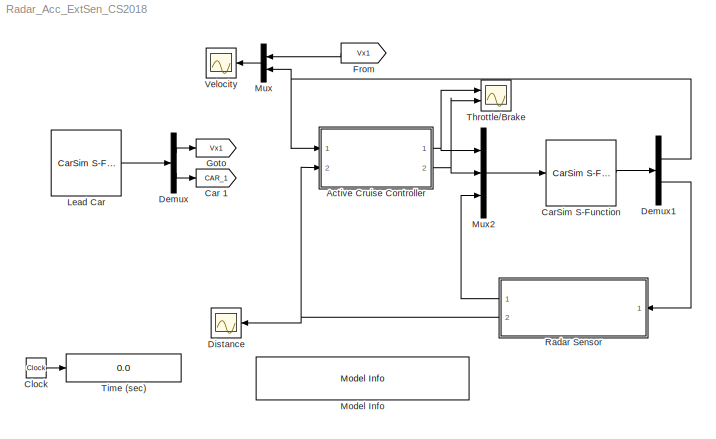
MODEL Radar_Acc_ExtSen_CS2018
KIND model
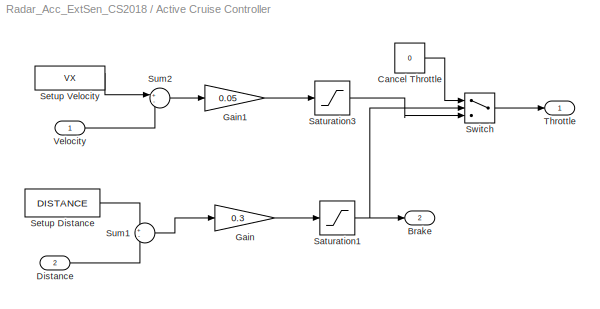
BLOCK [SubSystem] Active Cruise Controller
  FunctionWithSeparateData = off
  MaskCallbackString = |
  MaskEnableString = on,on
  MaskHideContents = off
  MaskIconFrame = on
  MaskIconOpaque = on
  MaskIconRotate = none
  MaskIconUnits = autoscale
  MaskPortRotate = default
  MaskPromptString = Setup Velocity (km/h)|Setup Distance (m)
  MaskStyleString = edit,edit
  MaskToolTipString = on,on
  MaskTunableValueString = on,on
  MaskValueString = 95|50
  MaskVariables = VX=@1;DISTANCE=@2;
  MaskVisibilityString = on,on
  MinAlgLoopOccurrences = off
  Opaque = off
  Ports = [2, 2]
  PropExecContextOutsideSubsystem = off
  RTWSystemCode = Auto
  RequestExecContextInheritance = off
  SID = 1
BLOCK [Outport] Active Cruise Controller/Brake
  IconDisplay = Port number
  Port = 2
  SID = 15
BLOCK [Constant] Active Cruise Controller/Cancel Throttle
  SID = 4
  Value = 0
BLOCK [Inport] Active Cruise Controller/Distance
  IconDisplay = Port number
  Port = 2
  SID = 3
BLOCK [Gain] Active Cruise Controller/Gain
  Gain = 0.3
  SID = 5
BLOCK [Gain] Active Cruise Controller/Gain1
  Gain = 0.05
  SID = 6
BLOCK [Saturate] Active Cruise Controller/Saturation1
  InputPortMap = u0
  LowerLimit = 0
  Ports = [1, 1]
  SID = 7
  UpperLimit = 15
BLOCK [Saturate] Active Cruise Controller/Saturation3
  InputPortMap = u0
  LowerLimit = 0
  Ports = [1, 1]
  SID = 8
  UpperLimit = 1
BLOCK [Constant] Active Cruise Controller/Setup Distance
  SID = 9
  Value = DISTANCE
BLOCK [Constant] Active Cruise Controller/Setup Velocity
  SID = 10
  Value = VX
BLOCK [Sum] Active Cruise Controller/Sum1
  IconShape = round
  Inputs = +-
  Ports = [2, 1]
  SID = 11
BLOCK [Sum] Active Cruise Controller/Sum2
  IconShape = round
  Inputs = +-
  Ports = [2, 1]
  SID = 12
BLOCK [Switch] Active Cruise Controller/Switch
  Criteria = u2 > Threshold
  InputSameDT = off
  SID = 13
BLOCK [Outport] Active Cruise Controller/Throttle
  IconDisplay = Port number
  SID = 14
BLOCK [Inport] Active Cruise Controller/Velocity
  IconDisplay = Port number
  SID = 2
BLOCK [Goto] Car 1
  GotoTag = CAR_1
  SID = 16
  TagVisibility = global
BLOCK [Reference] CarSim S-Function  REF=Solver_SF/CarSim S-Function
  Ports = [1, 1]
  Priority = 1
  SID = 21
  SIMFILE = Radar_Acc_ExtSen_Car_2.sim
  SourceBlock = Solver_SF/CarSim S-Function
  SourceType = Vehicle math model library
BLOCK [Clock] Clock
  Decimation = 10
  SID = 17
BLOCK [Demux] Demux
  Outputs = [1 3]
  Ports = [1, 2]
  SID = 18
BLOCK [Demux] Demux1
  Outputs = [1 3]
  Ports = [1, 2]
  SID = 19
BLOCK [Scope] Distance
  DataFormat = Array
  Floating = off
  LimitDataPoints = off
  NumInputPorts = 1
  Ports = [1]
  SID = 20
  SaveName = ScopeData1
  TickLabels = on
  TimeRange = 50
  YMax = 80
  YMin = 5
BLOCK [From] From
  CloseFcn = tagdialog Close
  GotoTag = Vx1
  SID = 22
BLOCK [Goto] Goto
  GotoTag = Vx1
  SID = 23
  TagVisibility = local
BLOCK [Reference] Lead Car  REF=Solver_SF/CarSim S-Function
  Ports = [0, 1]
  Priority = 1
  SID = 24
  SIMFILE = Radar_Acc_ExtSen_Car_1.sim
  SourceBlock = Solver_SF/CarSim S-Function
  SourceType = Vehicle math model library
BLOCK [Reference] Model Info  REF=simulink/Model-Wide\nUtilities/Model Info
  BlockCM = none
  DisplayStringWithTags = Multi Vehicle Run\nAdaptive Cruise Control Model
  Frame = on
  FunctionWithSeparateData = off
  GeneratePreprocessorConditionals = off
  HorizontalTextAlignment = Center
  InitialBlockCM = none
  LeftAlignmentValue = 0.5
  MaskDisplayString = Multi Vehicle Run\\nAdaptive Cruise Control Model
  Ports = []
  RTWMemSecDataConstants = Inherit from model
  RTWMemSecDataInternal = Inherit from model
  RTWMemSecDataParameters = Inherit from model
  RTWMemSecFuncExecute = Inherit from model
  RTWMemSecFuncInitTerm = Inherit from model
  SID = 26
  ShowPortLabels = FromPortIcon
  SourceBlock = simulink/Model-Wide\nUtilities/Model Info
  SourceBlockDiagram = Radar_Acc_ExtSen_CS2018
  SourceType = CMBlock
  SystemSampleTime = -1
  TagMaxNumber = 20
BLOCK [Mux] Mux
  DisplayOption = bar
  Inputs = 2
  Ports = [2, 1]
  SID = 27
BLOCK [Mux] Mux2
  Inputs = 3
  Ports = [3, 1]
  SID = 28
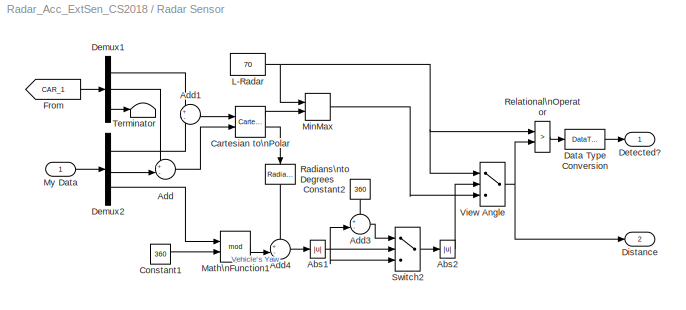
BLOCK [SubSystem] Radar Sensor
  FunctionWithSeparateData = off
  MaskCallbackString = |
  MaskDescription = An example of a radar sensor. It can detect the distance between the sensor and another object according its position (Xo, Yo).\n\nInput parameters are View Angle(deg) and radar detectable distance(m).
  MaskEnableString = on,on
  MaskHideContents = off
  MaskIconFrame = on
  MaskIconOpaque = on
  MaskIconRotate = none
  MaskIconUnits = autoscale
  MaskInitialization = d_ang= str2double(S_ANGLE)/2;\nset_param([gcb '/View Angle'], 'Threshold', sprintf('%0.2f', d_ang));\nset_param([gcb '/L-Radar'], 'Value', S_DISTANCE);\n
  MaskPortRotate = default
  MaskPromptString = View Angle (deg)|Distance Range (m)
  MaskStyleString = edit,edit
  MaskToolTipString = on,on
  MaskTunableValueString = off,off
  MaskValueString = 10|70
  MaskVariables = S_ANGLE=&1;S_DISTANCE=&2;
  MaskVisibilityString = on,on
  MinAlgLoopOccurrences = off
  Opaque = off
  Ports = [1, 2]
  PropExecContextOutsideSubsystem = off
  RTWSystemCode = Auto
  RequestExecContextInheritance = off
  SID = 29
BLOCK [Abs] Radar Sensor/Abs1
  SID = 31
  SaturateOnIntegerOverflow = off
BLOCK [Abs] Radar Sensor/Abs2
  SID = 32
  SaturateOnIntegerOverflow = off
BLOCK [Sum] Radar Sensor/Add
  IconShape = round
  InputSameDT = off
  Inputs = +-|
  OutDataTypeStr = Inherit: Inherit via internal rule
  Ports = [2, 1]
  SID = 33
  SaturateOnIntegerOverflow = off
BLOCK [Sum] Radar Sensor/Add1
  IconShape = round
  InputSameDT = off
  Inputs = +-
  OutDataTypeStr = Inherit: Inherit via internal rule
  Ports = [2, 1]
  SID = 34
  SaturateOnIntegerOverflow = off
BLOCK [Sum] Radar Sensor/Add3
  IconShape = round
  InputSameDT = off
  Inputs = +-|
  OutDataTypeStr = Inherit: Inherit via internal rule
  Ports = [2, 1]
  SID = 35
  SaturateOnIntegerOverflow = off
BLOCK [Sum] Radar Sensor/Add4
  IconShape = round
  InputSameDT = off
  Inputs = +-|
  OutDataTypeStr = Inherit: Inherit via internal rule
  Ports = [2, 1]
  SID = 36
  SaturateOnIntegerOverflow = off
BLOCK [Reference] Radar Sensor/Cartesian to\nPolar  REF=simulink_extras/Transformations/Cartesian to\nPolar
  FunctionWithSeparateData = off
  GeneratePreprocessorConditionals = off
  Ports = [2, 2]
  RTWMemSecDataConstants = Inherit from model
  RTWMemSecDataInternal = Inherit from model
  RTWMemSecDataParameters = Inherit from model
  RTWMemSecFuncExecute = Inherit from model
  RTWMemSecFuncInitTerm = Inherit from model
  SID = 37
  ShowPortLabels = FromPortIcon
  SourceBlock = simulink_extras/Transformations/Cartesian to\nPolar
  SourceType = Cart2Polar
  SystemSampleTime = -1
BLOCK [Constant] Radar Sensor/Constant1
  SID = 38
  Value = 360
BLOCK [Constant] Radar Sensor/Constant2
  SID = 39
  Value = 360
BLOCK [DataTypeConversion] Radar Sensor/Data Type Conversion
  SID = 40
  SaturateOnIntegerOverflow = off
BLOCK [Demux] Radar Sensor/Demux1
  Outputs = 3
  Ports = [1, 3]
  SID = 41
BLOCK [Demux] Radar Sensor/Demux2
  Outputs = 3
  Ports = [1, 3]
  SID = 42
BLOCK [Outport] Radar Sensor/Detected?
  IconDisplay = Port number
  SID = 52
BLOCK [Outport] Radar Sensor/Distance
  IconDisplay = Port number
  Port = 2
  SID = 53
BLOCK [From] Radar Sensor/From
  CloseFcn = tagdialog Close
  GotoTag = CAR_1
  SID = 43
  TagVisibility = global
BLOCK [Constant] Radar Sensor/L-Radar
  SID = 44
  Value = 70
BLOCK [Math] Radar Sensor/Math\nFunction1
  Operator = mod
  Ports = [2, 1]
  SID = 45
BLOCK [MinMax] Radar Sensor/MinMax
  Function = min
  Inputs = 2
  Ports = [2, 1]
  SID = 46
BLOCK [Inport] Radar Sensor/My Data
  IconDisplay = Port number
  SID = 30
BLOCK [Reference] Radar Sensor/Radians\nto Degrees  REF=simulink_extras/Transformations/Radians\nto Degrees
  FunctionWithSeparateData = off
  GeneratePreprocessorConditionals = off
  Ports = [1, 1]
  RTWMemSecDataConstants = Inherit from model
  RTWMemSecDataInternal = Inherit from model
  RTWMemSecDataParameters = Inherit from model
  RTWMemSecFuncExecute = Inherit from model
  RTWMemSecFuncInitTerm = Inherit from model
  SID = 47
  ShowPortLabels = FromPortIcon
  SourceBlock = simulink_extras/Transformations/Radians\nto Degrees
  SourceType = RadiansToDegrees
  SystemSampleTime = -1
BLOCK [RelationalOperator] Radar Sensor/Relational\nOperator
  InputSameDT = off
  Operator = >
  OutDataTypeStr = boolean
  Ports = [2, 1]
  SID = 48
BLOCK [Switch] Radar Sensor/Switch2
  InputSameDT = off
  SID = 49
  SaturateOnIntegerOverflow = off
  Threshold = 270
BLOCK [Terminator] Radar Sensor/Terminator
  SID = 50
BLOCK [Switch] Radar Sensor/View Angle
  InputSameDT = off
  SID = 51
  SaturateOnIntegerOverflow = off
  Threshold = 5.00
BLOCK [Scope] Throttle//Brake
  DataFormat = Array
  Floating = off
  LimitDataPoints = off
  MaxDataPoints = 50000
  NumInputPorts = 2
  Ports = [2]
  SID = 54
  TickLabels = on
  TimeRange = 50
  YMax = 1~12.5
  YMin = 0~0
BLOCK [Display] Time (sec)
  Decimation = 100
  Format = bank
  Lockdown = off
  Ports = [1]
  SID = 55
BLOCK [Scope] Velocity
  DataFormat = Array
  Floating = off
  LimitDataPoints = off
  NumInputPorts = 1
  Ports = [1]
  SID = 56
  TickLabels = on
  TimeRange = 50
  YMax = 120
  YMin = -10
LINE Active Cruise Controller/Cancel Throttle:1 -> Active Cruise Controller/Switch:1
LINE Active Cruise Controller/Distance:1 -> Active Cruise Controller/Sum1:2
LINE Active Cruise Controller/Gain1:1 -> Active Cruise Controller/Saturation3:1
LINE Active Cruise Controller/Gain:1 -> Active Cruise Controller/Saturation1:1
NET Active Cruise Controller/Saturation1:1 -> Active Cruise Controller/Brake:1, Active Cruise Controller/Switch:2
LINE Active Cruise Controller/Saturation3:1 -> Active Cruise Controller/Switch:3
LINE Active Cruise Controller/Setup Distance:1 -> Active Cruise Controller/Sum1:1
LINE Active Cruise Controller/Setup Velocity:1 -> Active Cruise Controller/Sum2:1
LINE Active Cruise Controller/Sum1:1 -> Active Cruise Controller/Gain:1
LINE Active Cruise Controller/Sum2:1 -> Active Cruise Controller/Gain1:1
LINE Active Cruise Controller/Switch:1 -> Active Cruise Controller/Throttle:1
LINE Active Cruise Controller/Velocity:1 -> Active Cruise Controller/Sum2:2
NET Active Cruise Controller:1 -> Mux2:1, Throttle//Brake:1
NET Active Cruise Controller:2 -> Mux2:2, Throttle//Brake:2
LINE CarSim S-Function:1 -> Demux1:1
LINE Clock:1 -> Time (sec):1
NET Demux1:1 -> Active Cruise Controller:1, Mux:2
LINE Demux1:2 -> Radar Sensor:1
LINE Demux:1 -> Goto:1
LINE Demux:2 -> Car 1:1
LINE From:1 -> Mux:1
LINE Lead Car:1 -> Demux:1
LINE Mux2:1 -> CarSim S-Function:1
LINE Mux:1 -> Velocity:1
NET Radar Sensor/Abs1:1 -> Radar Sensor/Add3:2, Radar Sensor/Switch2:2, Radar Sensor/Switch2:3
LINE Radar Sensor/Abs2:1 -> Radar Sensor/View Angle:2
LINE Radar Sensor/Add1:1 -> Radar Sensor/Cartesian to\nPolar:1
LINE Radar Sensor/Add3:1 -> Radar Sensor/Switch2:1
LINE Radar Sensor/Add4:1 -> Radar Sensor/Abs1:1
LINE Radar Sensor/Add:1 -> Radar Sensor/Cartesian to\nPolar:2
LINE Radar Sensor/Cartesian to\nPolar:1 -> Radar Sensor/MinMax:2
LINE Radar Sensor/Cartesian to\nPolar:2 -> Radar Sensor/Radians\nto Degrees:1
LINE Radar Sensor/Constant1:1 -> Radar Sensor/Math\nFunction1:2
LINE Radar Sensor/Constant2:1 -> Radar Sensor/Add3:1
LINE Radar Sensor/Data Type Conversion:1 -> Radar Sensor/Detected?:1
LINE Radar Sensor/Demux1:1 -> Radar Sensor/Add1:1
LINE Radar Sensor/Demux1:2 -> Radar Sensor/Add:1
LINE Radar Sensor/Demux1:3 -> Radar Sensor/Terminator:1
LINE Radar Sensor/Demux2:1 -> Radar Sensor/Add1:2
LINE Radar Sensor/Demux2:2 -> Radar Sensor/Add:2
LINE Radar Sensor/Demux2:3 -> Radar Sensor/Math\nFunction1:1
LINE Radar Sensor/From:1 -> Radar Sensor/Demux1:1
NET Radar Sensor/L-Radar:1 -> Radar Sensor/MinMax:1, Radar Sensor/Relational\nOperator:1, Radar Sensor/View Angle:1
LINE Radar Sensor/Math\nFunction1:1 -> Radar Sensor/Add4:2
LINE Radar Sensor/MinMax:1 -> Radar Sensor/View Angle:3
LINE Radar Sensor/My Data:1 -> Radar Sensor/Demux2:1
LINE Radar Sensor/Radians\nto Degrees:1 -> Radar Sensor/Add4:1
LINE Radar Sensor/Relational\nOperator:1 -> Radar Sensor/Data Type Conversion:1
LINE Radar Sensor/Switch2:1 -> Radar Sensor/Abs2:1
NET Radar Sensor/View Angle:1 -> Radar Sensor/Distance:1, Radar Sensor/Relational\nOperator:2
LINE Radar Sensor:1 -> Mux2:3
NET Radar Sensor:2 -> Active Cruise Controller:2, Distance:1
note: NET lines group one-source signal fan-out (src -> all destinations, sorted); 1:1 wires keep LINE
